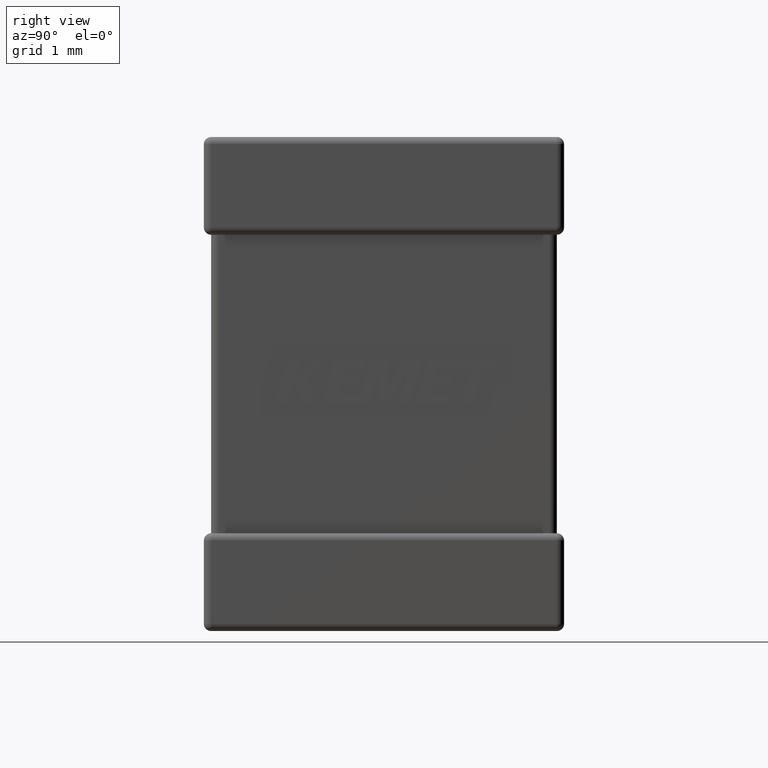
[diagram: clean part render]
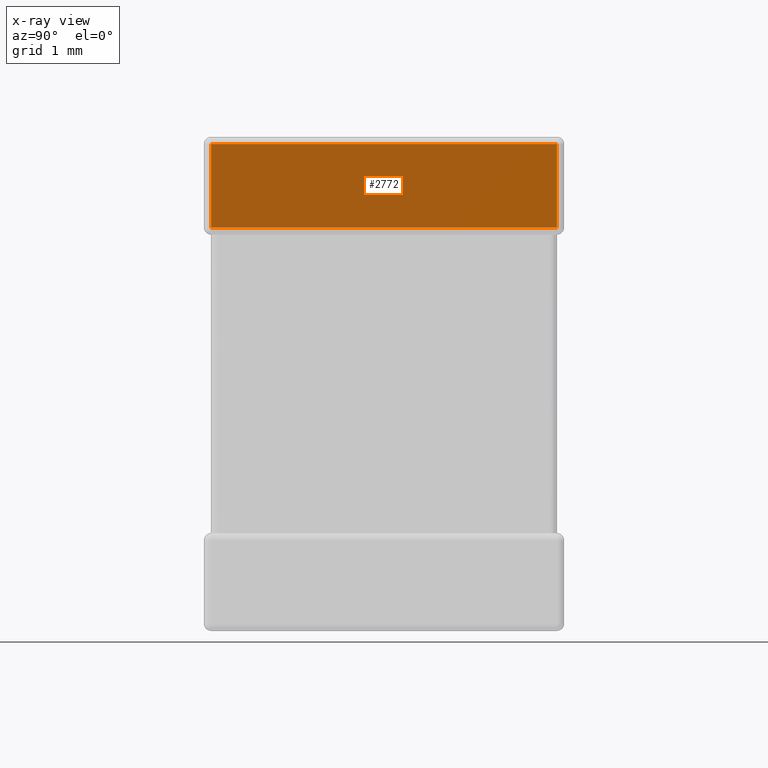
[diagram: x-ray — body ghosted, one internal face saturated and labeled with its STEP entity id]
A machine part, right view, then the same camera in x-ray: the body is ghosted and one INTERNAL B-rep face — a face not visible from any outside direction — is saturated and labeled: STEP entity #2772.
In plain terms, the highlighted planar face has unit normal (-1, -0, 0).
Its self-contained STEP definition (entity closure, byte-faithful):
#283 = CARTESIAN_POINT ( 'NONE',  ( 1.949999999999999289, 3.430000000000000160, -4.799999999999999822 ) ) ;
#1035 = EDGE_CURVE ( 'NONE', #2783, #2102, #2332, .T. ) ;
#1264 = LINE ( 'NONE', #2593, #4636 ) ;
#1838 = PLANE ( 'NONE',  #8255 ) ;
#1925 = LINE ( 'NONE', #4683, #7030 ) ;
#2102 = VERTEX_POINT ( 'NONE', #4679 ) ;
#2332 = LINE ( 'NONE', #4535, #6015 ) ;
#2338 = ORIENTED_EDGE ( 'NONE', *, *, #1035, .T. ) ;
#2593 = CARTESIAN_POINT ( 'NONE',  ( 1.949999999999999956, 2.414409817907971402E-16, -0.8800000000000005596 ) ) ;
#2772 = ADVANCED_FACE ( 'NONE', ( #7979 ), #1838, .T. ) ;
#2783 = VERTEX_POINT ( 'NONE', #8342 ) ;
#3248 = ORIENTED_EDGE ( 'NONE', *, *, #3927, .T. ) ;
#3407 = CARTESIAN_POINT ( 'NONE',  ( 1.949999999999999289, 3.430000000000000160, -0.07000000000000000666 ) ) ;
#3599 = DIRECTION ( 'NONE',  ( -1.858632295689436102E-16, 1.000000000000000000, -0.000000000000000000 ) ) ;
#3670 = LINE ( 'NONE', #283, #7414 ) ;
#3927 = EDGE_CURVE ( 'NONE', #8116, #6352, #3670, .T. ) ;
#4194 = CARTESIAN_POINT ( 'NONE',  ( 1.949999999999999956, 2.414409817907970416E-16, -4.799999999999999822 ) ) ;
#4535 = CARTESIAN_POINT ( 'NONE',  ( 1.949999999999999956, 0.07000000000000024258, -4.799999999999999822 ) ) ;
#4636 = VECTOR ( 'NONE', #8100, 1000.000000000000000 ) ;
#4679 = CARTESIAN_POINT ( 'NONE',  ( 1.949999999999999956, 0.07000000000000024258, -0.07000000000000000666 ) ) ;
#4683 = CARTESIAN_POINT ( 'NONE',  ( 1.949999999999999289, 3.500000000000000444, -0.07000000000000000666 ) ) ;
#5677 = ORIENTED_EDGE ( 'NONE', *, *, #7194, .T. ) ;
#5713 = DIRECTION ( 'NONE',  ( 0.000000000000000000, 0.000000000000000000, 1.000000000000000000 ) ) ;
#6015 = VECTOR ( 'NONE', #5713, 1000.000000000000000 ) ;
#6352 = VERTEX_POINT ( 'NONE', #7600 ) ;
#6627 = EDGE_LOOP ( 'NONE', ( #8085, #3248, #5677, #2338 ) ) ;
#6878 = EDGE_CURVE ( 'NONE', #2102, #8116, #1925, .T. ) ;
#7030 = VECTOR ( 'NONE', #3599, 1000.000000000000000 ) ;
#7194 = EDGE_CURVE ( 'NONE', #6352, #2783, #1264, .T. ) ;
#7414 = VECTOR ( 'NONE', #8421, 1000.000000000000000 ) ;
#7570 = DIRECTION ( 'NONE',  ( 1.858632295689436102E-16, -1.000000000000000000, 0.000000000000000000 ) ) ;
#7600 = CARTESIAN_POINT ( 'NONE',  ( 1.949999999999999289, 3.430000000000000160, -0.8800000000000005596 ) ) ;
#7979 = FACE_OUTER_BOUND ( 'NONE', #6627, .T. ) ;
#8085 = ORIENTED_EDGE ( 'NONE', *, *, #6878, .T. ) ;
#8100 = DIRECTION ( 'NONE',  ( 1.858632295689436102E-16, -1.000000000000000000, 0.000000000000000000 ) ) ;
#8116 = VERTEX_POINT ( 'NONE', #3407 ) ;
#8255 = AXIS2_PLACEMENT_3D ( 'NONE', #4194, #8292, #7570 ) ;
#8292 = DIRECTION ( 'NONE',  ( -1.000000000000000000, -1.858632295689436102E-16, 0.000000000000000000 ) ) ;
#8342 = CARTESIAN_POINT ( 'NONE',  ( 1.949999999999999956, 0.07000000000000024258, -0.8800000000000005596 ) ) ;
#8421 = DIRECTION ( 'NONE',  ( -0.000000000000000000, -0.000000000000000000, -1.000000000000000000 ) ) ;